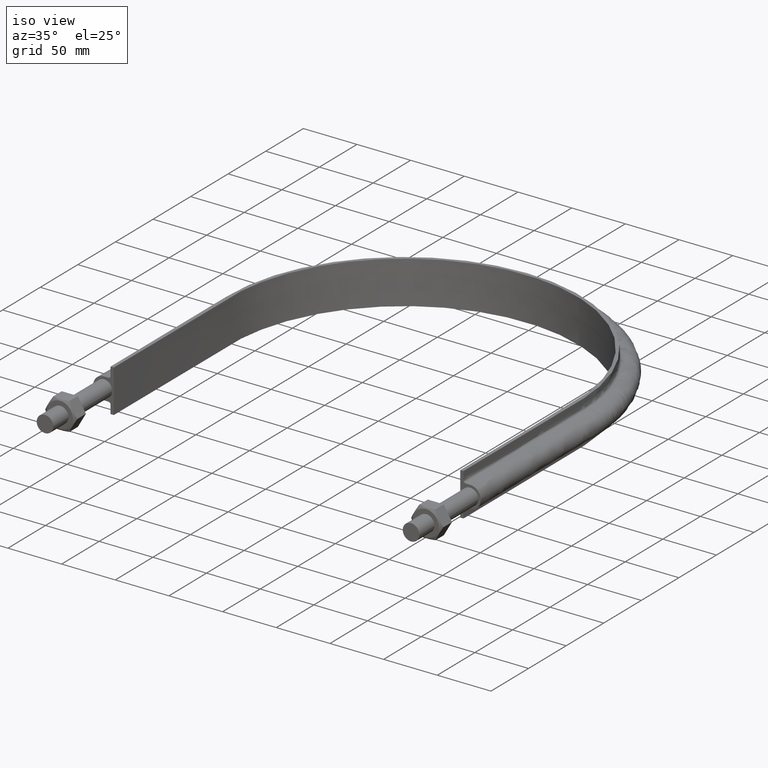
[diagram: clean part render]
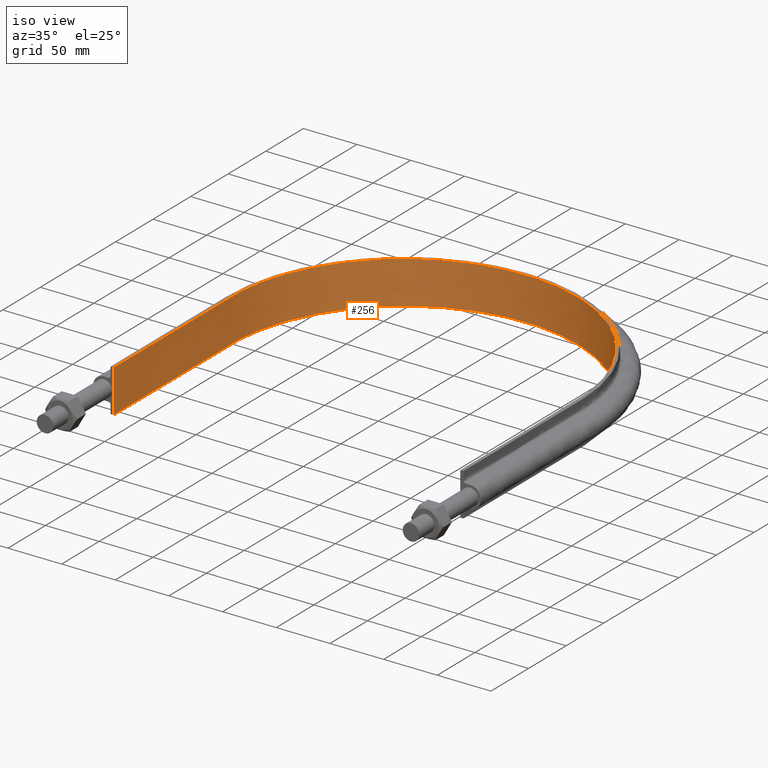
[diagram: same view with one face highlighted and labeled with its STEP entity id]
A machine part, iso view. The second image highlights one B-rep face of the part: STEP entity #256.
In plain terms, the highlighted face is a SurfaceOfExtrusion surface.
Its self-contained STEP definition (entity closure, byte-faithful):
#256 = ADVANCED_FACE( '', ( #353 ), #354, .T. );
#353 = FACE_OUTER_BOUND( '', #1227, .T. );
#354 = SURFACE_OF_LINEAR_EXTRUSION( '', #1228, #1229 );
#1227 = EDGE_LOOP( '', ( #1887, #1888, #1889, #1890 ) );
#1228 = B_SPLINE_CURVE_WITH_KNOTS( '', 3, ( #1891, #1892, #1893, #1894, #1895, #1896, #1897, #1898, #1899, #1900, #1901, #1902, #1903, #1904, #1905, #1906, #1907, #1908 ), .UNSPECIFIED., .F., .F., ( 4, 3, 1, 1, 1, 1, 1, 1, 1, 1, 3, 4 ), ( -11.0000000000000, -10.0000000000000, -9.00000000000000, -8.00000000000000, -7.00000000000000, -6.00000000000000, -5.00000000000000, -4.00000000000000, -3.00000000000000, -2.00000000000000, -1.00000000000000, 0.000000000000000 ), .UNSPECIFIED. );
#1229 = VECTOR( '', #1909, 1000.00000000000 );
#1887 = ORIENTED_EDGE( '', *, *, #1981, .T. );
#1888 = ORIENTED_EDGE( '', *, *, #1990, .F. );
#1889 = ORIENTED_EDGE( '', *, *, #1975, .F. );
#1890 = ORIENTED_EDGE( '', *, *, #1989, .T. );
#1891 = CARTESIAN_POINT( '', ( -161.400000000000, 78.5100000000001, -521.637844225282 ) );
#1892 = CARTESIAN_POINT( '', ( -161.400000000000, 130.543333333333, -521.637844225282 ) );
#1893 = CARTESIAN_POINT( '', ( -161.400000000000, 182.576666666667, -521.637844225282 ) );
#1894 = CARTESIAN_POINT( '', ( -161.400000000000, 234.610000000000, -521.637844225282 ) );
#1895 = CARTESIAN_POINT( '', ( -161.400000000000, 253.377198593415, -521.637844225282 ) );
#1896 = CARTESIAN_POINT( '', ( -154.777803559236, 290.949605256109, -521.637844225282 ) );
#1897 = CARTESIAN_POINT( '', ( -126.176021511748, 340.482890510073, -521.637844225282 ) );
#1898 = CARTESIAN_POINT( '', ( -82.3555491101910, 377.254353924046, -521.637844225282 ) );
#1899 = CARTESIAN_POINT( '', ( -28.6017820474880, 396.818694818595, -521.637844225282 ) );
#1900 = CARTESIAN_POINT( '', ( 28.6017820474882, 396.818694818595, -521.637844225282 ) );
#1901 = CARTESIAN_POINT( '', ( 82.3555491101912, 377.254353924046, -521.637844225282 ) );
#1902 = CARTESIAN_POINT( '', ( 126.176021511748, 340.482890510073, -521.637844225282 ) );
#1903 = CARTESIAN_POINT( '', ( 154.777803559236, 290.949605256109, -521.637844225282 ) );
#1904 = CARTESIAN_POINT( '', ( 161.400000000000, 253.377198593415, -521.637844225282 ) );
#1905 = CARTESIAN_POINT( '', ( 161.400000000000, 234.610000000000, -521.637844225282 ) );
#1906 = CARTESIAN_POINT( '', ( 161.400000000000, 182.576666666667, -521.637844225282 ) );
#1907 = CARTESIAN_POINT( '', ( 161.400000000000, 130.543333333333, -521.637844225282 ) );
#1908 = CARTESIAN_POINT( '', ( 161.400000000000, 78.5100000000000, -521.637844225282 ) );
#1909 = DIRECTION( '', ( 0.000000000000000, 0.000000000000000, 1.00000000000000 ) );
#1975 = EDGE_CURVE( '', #2091, #2092, #2093, .T. );
#1981 = EDGE_CURVE( '', #2102, #2103, #2104, .T. );
#1989 = EDGE_CURVE( '', #2091, #2102, #2115, .T. );
#1990 = EDGE_CURVE( '', #2092, #2103, #2116, .T. );
#2091 = VERTEX_POINT( '', #2542 );
#2092 = VERTEX_POINT( '', #2543 );
#2093 = LINE( '', #2544, #2545 );
#2102 = VERTEX_POINT( '', #2598 );
#2103 = VERTEX_POINT( '', #2599 );
#2104 = LINE( '', #2600, #2601 );
#2115 = B_SPLINE_CURVE_WITH_KNOTS( '', 3, ( #2895, #2896, #2897, #2898, #2899, #2900, #2901, #2902, #2903, #2904, #2905, #2906, #2907, #2908, #2909, #2910, #2911, #2912 ), .UNSPECIFIED., .F., .F., ( 4, 3, 1, 1, 1, 1, 1, 1, 1, 1, 3, 4 ), ( -11.0000000000000, -10.0000000000000, -9.00000000000000, -8.00000000000000, -7.00000000000000, -6.00000000000000, -5.00000000000000, -4.00000000000000, -3.00000000000000, -2.00000000000000, -1.00000000000000, 0.000000000000000 ), .UNSPECIFIED. );
#2116 = B_SPLINE_CURVE_WITH_KNOTS( '', 3, ( #2913, #2914, #2915, #2916, #2917, #2918, #2919, #2920, #2921, #2922, #2923, #2924, #2925, #2926, #2927, #2928, #2929, #2930 ), .UNSPECIFIED., .F., .F., ( 4, 3, 1, 1, 1, 1, 1, 1, 1, 1, 3, 4 ), ( -11.0000000000000, -10.0000000000000, -9.00000000000000, -8.00000000000000, -7.00000000000000, -6.00000000000000, -5.00000000000000, -4.00000000000000, -3.00000000000000, -2.00000000000000, -1.00000000000000, 0.000000000000000 ), .UNSPECIFIED. );
#2542 = CARTESIAN_POINT( '', ( -161.400000000000, 78.5100000000001, -20.0000000000000 ) );
#2543 = CARTESIAN_POINT( '', ( -161.400000000000, 78.5100000000001, 20.0000000000000 ) );
#2544 = CARTESIAN_POINT( '', ( -161.400000000000, 78.5100000000001, -521.637844225282 ) );
#2545 = VECTOR( '', #2999, 1000.00000000000 );
#2598 = CARTESIAN_POINT( '', ( 161.400000000000, 78.5100000000000, -20.0000000000000 ) );
#2599 = CARTESIAN_POINT( '', ( 161.400000000000, 78.5100000000000, 20.0000000000000 ) );
#2600 = CARTESIAN_POINT( '', ( 161.400000000000, 78.5100000000000, -521.637844225282 ) );
#2601 = VECTOR( '', #3003, 1000.00000000000 );
#2895 = CARTESIAN_POINT( '', ( -161.400000000000, 78.5100000000001, -20.0000000000000 ) );
#2896 = CARTESIAN_POINT( '', ( -161.400000000000, 130.543333333333, -20.0000000000000 ) );
#2897 = CARTESIAN_POINT( '', ( -161.400000000000, 182.576666666667, -20.0000000000000 ) );
#2898 = CARTESIAN_POINT( '', ( -161.400000000000, 234.610000000000, -20.0000000000000 ) );
#2899 = CARTESIAN_POINT( '', ( -161.400000000000, 253.377198593415, -20.0000000000000 ) );
#2900 = CARTESIAN_POINT( '', ( -154.777803559236, 290.949605256109, -20.0000000000000 ) );
#2901 = CARTESIAN_POINT( '', ( -126.176021511748, 340.482890510073, -20.0000000000000 ) );
#2902 = CARTESIAN_POINT( '', ( -82.3555491101910, 377.254353924046, -20.0000000000000 ) );
#2903 = CARTESIAN_POINT( '', ( -28.6017820474880, 396.818694818595, -20.0000000000000 ) );
#2904 = CARTESIAN_POINT( '', ( 28.6017820474882, 396.818694818595, -20.0000000000000 ) );
#2905 = CARTESIAN_POINT( '', ( 82.3555491101912, 377.254353924046, -20.0000000000000 ) );
#2906 = CARTESIAN_POINT( '', ( 126.176021511748, 340.482890510073, -20.0000000000000 ) );
#2907 = CARTESIAN_POINT( '', ( 154.777803559236, 290.949605256109, -20.0000000000000 ) );
#2908 = CARTESIAN_POINT( '', ( 161.400000000000, 253.377198593415, -20.0000000000000 ) );
#2909 = CARTESIAN_POINT( '', ( 161.400000000000, 234.610000000000, -20.0000000000000 ) );
#2910 = CARTESIAN_POINT( '', ( 161.400000000000, 182.576666666667, -20.0000000000000 ) );
#2911 = CARTESIAN_POINT( '', ( 161.400000000000, 130.543333333333, -20.0000000000000 ) );
#2912 = CARTESIAN_POINT( '', ( 161.400000000000, 78.5100000000000, -20.0000000000000 ) );
#2913 = CARTESIAN_POINT( '', ( -161.400000000000, 78.5100000000001, 20.0000000000000 ) );
#2914 = CARTESIAN_POINT( '', ( -161.400000000000, 130.543333333333, 20.0000000000000 ) );
#2915 = CARTESIAN_POINT( '', ( -161.400000000000, 182.576666666667, 20.0000000000000 ) );
#2916 = CARTESIAN_POINT( '', ( -161.400000000000, 234.610000000000, 20.0000000000000 ) );
#2917 = CARTESIAN_POINT( '', ( -161.400000000000, 253.377198593415, 20.0000000000000 ) );
#2918 = CARTESIAN_POINT( '', ( -154.777803559236, 290.949605256109, 20.0000000000000 ) );
#2919 = CARTESIAN_POINT( '', ( -126.176021511748, 340.482890510073, 20.0000000000000 ) );
#2920 = CARTESIAN_POINT( '', ( -82.3555491101910, 377.254353924046, 20.0000000000000 ) );
#2921 = CARTESIAN_POINT( '', ( -28.6017820474880, 396.818694818595, 20.0000000000000 ) );
#2922 = CARTESIAN_POINT( '', ( 28.6017820474882, 396.818694818595, 20.0000000000000 ) );
#2923 = CARTESIAN_POINT( '', ( 82.3555491101912, 377.254353924046, 20.0000000000000 ) );
#2924 = CARTESIAN_POINT( '', ( 126.176021511748, 340.482890510073, 20.0000000000000 ) );
#2925 = CARTESIAN_POINT( '', ( 154.777803559236, 290.949605256109, 20.0000000000000 ) );
#2926 = CARTESIAN_POINT( '', ( 161.400000000000, 253.377198593415, 20.0000000000000 ) );
#2927 = CARTESIAN_POINT( '', ( 161.400000000000, 234.610000000000, 20.0000000000000 ) );
#2928 = CARTESIAN_POINT( '', ( 161.400000000000, 182.576666666667, 20.0000000000000 ) );
#2929 = CARTESIAN_POINT( '', ( 161.400000000000, 130.543333333333, 20.0000000000000 ) );
#2930 = CARTESIAN_POINT( '', ( 161.400000000000, 78.5100000000000, 20.0000000000000 ) );
#2999 = DIRECTION( '', ( 0.000000000000000, 0.000000000000000, 1.00000000000000 ) );
#3003 = DIRECTION( '', ( 0.000000000000000, 0.000000000000000, 1.00000000000000 ) );